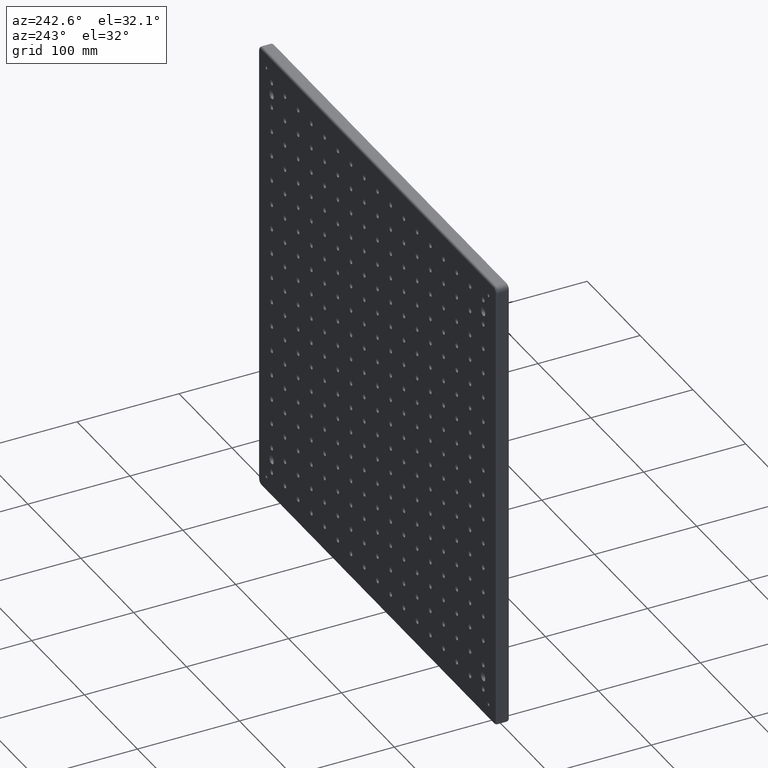
[diagram: clean part render]
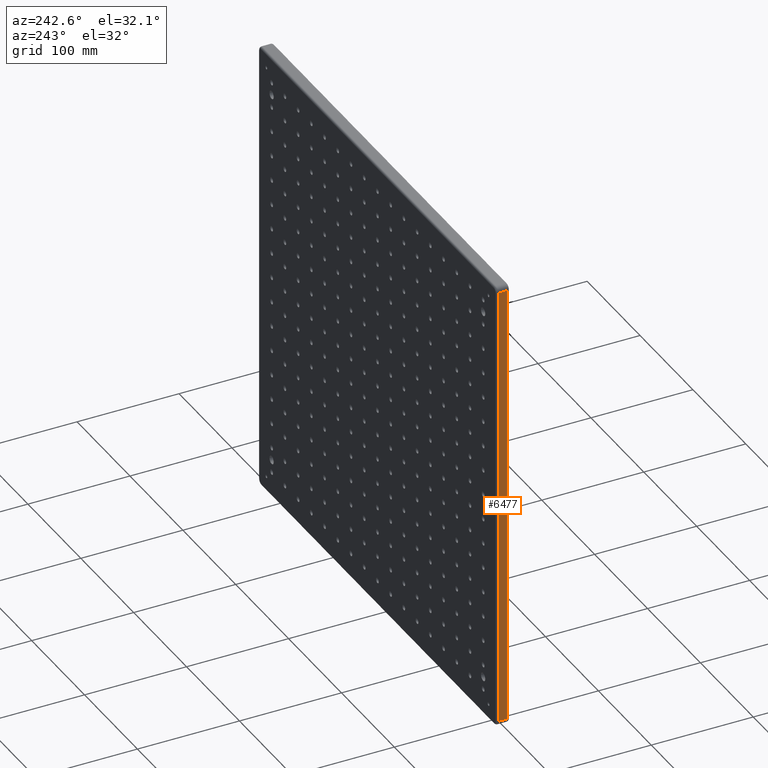
[diagram: same view with one face highlighted and labeled with its STEP entity id]
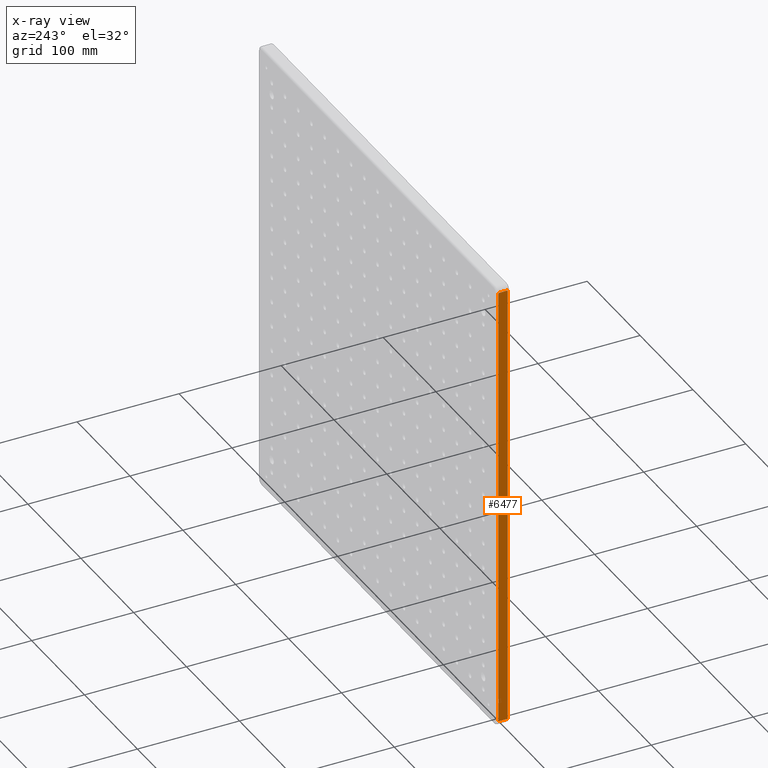
[diagram: x-ray of the same camera — body ghosted, the highlighted face saturated]
A machine part, auxiliary view. The second image highlights one B-rep face of the part: STEP entity #6477.
The next image is the same camera in x-ray: the body ghosted, the highlighted face saturated — about 0% of this face is hidden behind the body in this view.
In plain terms, the highlighted planar face has unit normal (1, 0, 0).
Its self-contained STEP definition (entity closure, byte-faithful):
#806 = ORIENTED_EDGE ( 'NONE', *, *, #5496, .F. ) ;
#1252 = CARTESIAN_POINT ( 'NONE',  ( -224.9999999999999100, 13.00000000000000000, -220.0000000000000000 ) ) ;
#2262 = CARTESIAN_POINT ( 'NONE',  ( -224.9999999999999700, 13.00000000000000000, 220.0000000000000000 ) ) ;
#2385 = VECTOR ( 'NONE', #6496, 1000.000000000000000 ) ;
#2633 = ORIENTED_EDGE ( 'NONE', *, *, #10785, .T. ) ;
#2695 = EDGE_CURVE ( 'NONE', #4583, #18163, #20708, .T. ) ;
#2828 = LINE ( 'NONE', #20365, #18929 ) ;
#3331 = LINE ( 'NONE', #2262, #16391 ) ;
#4267 = VERTEX_POINT ( 'NONE', #12792 ) ;
#4551 = DIRECTION ( 'NONE',  ( 1.000000000000000000, 0.0000000000000000000, 0.0000000000000000000 ) ) ;
#4583 = VERTEX_POINT ( 'NONE', #17445 ) ;
#4845 = PLANE ( 'NONE',  #11931 ) ;
#5496 = EDGE_CURVE ( 'NONE', #4267, #12474, #3331, .T. ) ;
#5498 = CARTESIAN_POINT ( 'NONE',  ( -224.9999999999999100, 2.000000000000001800, -220.0000000000000000 ) ) ;
#6477 = ADVANCED_FACE ( 'NONE', ( #7449 ), #4845, .F. ) ;
#6496 = DIRECTION ( 'NONE',  ( -0.0000000000000000000, -1.000000000000000000, -0.0000000000000000000 ) ) ;
#7449 = FACE_OUTER_BOUND ( 'NONE', #23023, .T. ) ;
#8178 = DIRECTION ( 'NONE',  ( 0.0000000000000000000, 0.0000000000000000000, -1.000000000000000000 ) ) ;
#9705 = CARTESIAN_POINT ( 'NONE',  ( -224.9999999999999100, 2.000000000000000000, -220.0000000000000000 ) ) ;
#9743 = DIRECTION ( 'NONE',  ( 0.0000000000000000000, -0.0000000000000000000, -1.000000000000000000 ) ) ;
#10442 = ORIENTED_EDGE ( 'NONE', *, *, #15364, .T. ) ;
#10586 = CARTESIAN_POINT ( 'NONE',  ( -224.9999999999999700, 2.000000000000003600, 220.0000000000000000 ) ) ;
#10785 = EDGE_CURVE ( 'NONE', #18163, #12474, #18441, .T. ) ;
#11931 = AXIS2_PLACEMENT_3D ( 'NONE', #1252, #4551, #8178 ) ;
#12474 = VERTEX_POINT ( 'NONE', #10586 ) ;
#12792 = CARTESIAN_POINT ( 'NONE',  ( -224.9999999999999700, 11.00000000000000000, 220.0000000000000000 ) ) ;
#15364 = EDGE_CURVE ( 'NONE', #4267, #4583, #2828, .T. ) ;
#16391 = VECTOR ( 'NONE', #21610, 1000.000000000000000 ) ;
#17137 = CARTESIAN_POINT ( 'NONE',  ( -224.9999999999999100, 13.00000000000000000, -220.0000000000000000 ) ) ;
#17445 = CARTESIAN_POINT ( 'NONE',  ( -224.9999999999999100, 11.00000000000000000, -220.0000000000000000 ) ) ;
#18163 = VERTEX_POINT ( 'NONE', #5498 ) ;
#18441 = LINE ( 'NONE', #9705, #21766 ) ;
#18929 = VECTOR ( 'NONE', #9743, 1000.000000000000000 ) ;
#20365 = CARTESIAN_POINT ( 'NONE',  ( -224.9999999999999100, 11.00000000000000000, -220.0000000000000000 ) ) ;
#20412 = DIRECTION ( 'NONE',  ( 0.0000000000000000000, 0.0000000000000000000, 1.000000000000000000 ) ) ;
#20708 = LINE ( 'NONE', #17137, #2385 ) ;
#21610 = DIRECTION ( 'NONE',  ( -0.0000000000000000000, -1.000000000000000000, -0.0000000000000000000 ) ) ;
#21766 = VECTOR ( 'NONE', #20412, 1000.000000000000000 ) ;
#21902 = ORIENTED_EDGE ( 'NONE', *, *, #2695, .T. ) ;
#23023 = EDGE_LOOP ( 'NONE', ( #21902, #2633, #806, #10442 ) ) ;